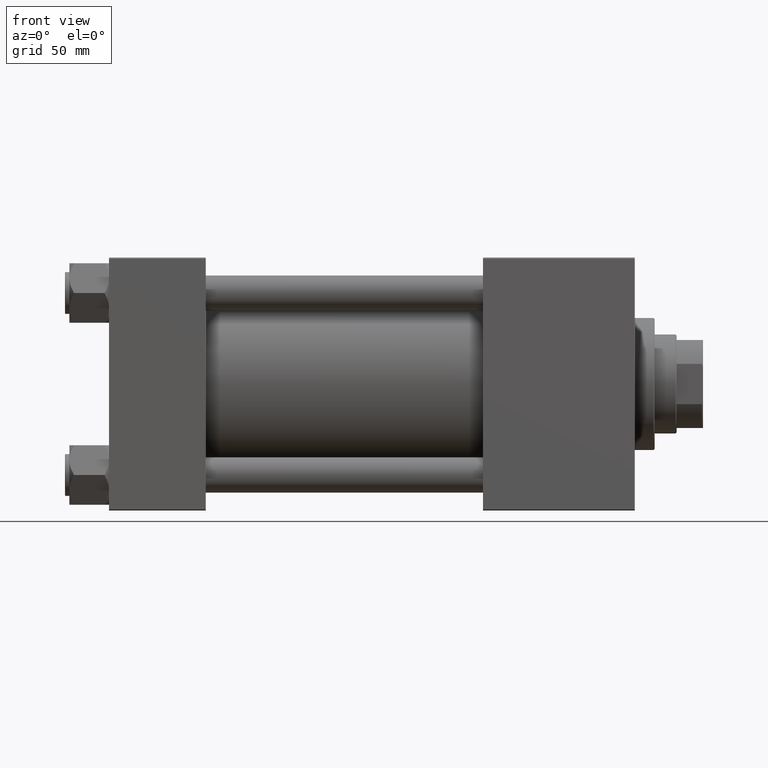
[diagram: clean part render]
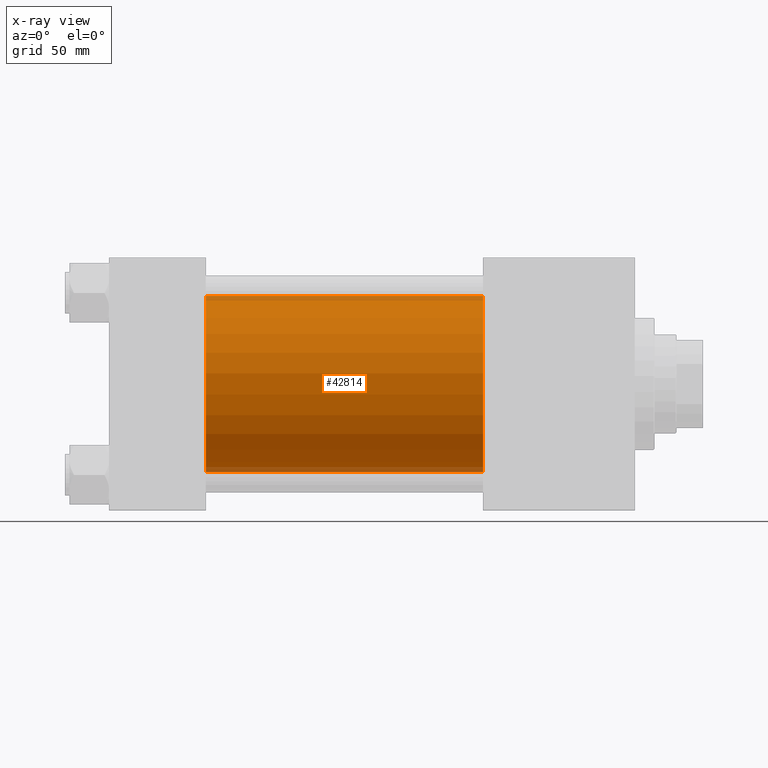
[diagram: x-ray — body ghosted, one internal face saturated and labeled with its STEP entity id]
A machine part, front view, then the same camera in x-ray: the body is ghosted and one INTERNAL B-rep face — a face not visible from any outside direction — is saturated and labeled: STEP entity #42814.
In plain terms, the highlighted cylindrical surface (partial cylindrical patch) has radius 40 mm, axis along (-1, -0, -0).
Its self-contained STEP definition (entity closure, byte-faithful):
#244 = DIRECTION ( 'NONE',  ( 0.000000000000000000, 0.000000000000000000, -1.000000000000000000 ) ) ;
#5362 = CIRCLE ( 'NONE', #17626, 40.00000000000000000 ) ;
#7646 = CARTESIAN_POINT ( 'NONE',  ( 169.9999999999999716, -2.602085213965210642E-15, 0.000000000000000000 ) ) ;
#7909 = CYLINDRICAL_SURFACE ( 'NONE', #46941, 40.00000000000000000 ) ;
#8044 = VERTEX_POINT ( 'NONE', #46992 ) ;
#9305 = VECTOR ( 'NONE', #21709, 1000.000000000000000 ) ;
#9625 = VERTEX_POINT ( 'NONE', #42390 ) ;
#10193 = VERTEX_POINT ( 'NONE', #15359 ) ;
#12612 = LINE ( 'NONE', #31824, #40355 ) ;
#13397 = EDGE_LOOP ( 'NONE', ( #23552, #50301, #29156, #16760 ) ) ;
#14602 = CARTESIAN_POINT ( 'NONE',  ( 44.00000000000000000, -2.602085213965210642E-15, 0.000000000000000000 ) ) ;
#15266 = CARTESIAN_POINT ( 'NONE',  ( 169.9999999999999716, -2.602085213965210642E-15, 40.00000000000000000 ) ) ;
#15359 = CARTESIAN_POINT ( 'NONE',  ( 44.00000000000000000, -2.602085213965210642E-15, 40.00000000000000000 ) ) ;
#16760 = ORIENTED_EDGE ( 'NONE', *, *, #41615, .F. ) ;
#17610 = CARTESIAN_POINT ( 'NONE',  ( 169.9999999999999716, 2.296501982624201990E-15, -40.00000000000000000 ) ) ;
#17626 = AXIS2_PLACEMENT_3D ( 'NONE', #14602, #37406, #30225 ) ;
#19437 = DIRECTION ( 'NONE',  ( 0.000000000000000000, 0.000000000000000000, 1.000000000000000000 ) ) ;
#21709 = DIRECTION ( 'NONE',  ( -1.000000000000000000, -0.000000000000000000, -0.000000000000000000 ) ) ;
#22247 = CIRCLE ( 'NONE', #47638, 40.00000000000000000 ) ;
#23552 = ORIENTED_EDGE ( 'NONE', *, *, #39528, .T. ) ;
#23781 = FACE_OUTER_BOUND ( 'NONE', #13397, .T. ) ;
#26872 = DIRECTION ( 'NONE',  ( -1.000000000000000000, -0.000000000000000000, -0.000000000000000000 ) ) ;
#27624 = EDGE_CURVE ( 'NONE', #10193, #8044, #5362, .T. ) ;
#29156 = ORIENTED_EDGE ( 'NONE', *, *, #27624, .F. ) ;
#29903 = LINE ( 'NONE', #17610, #9305 ) ;
#30225 = DIRECTION ( 'NONE',  ( 0.000000000000000000, 0.000000000000000000, -1.000000000000000000 ) ) ;
#30969 = DIRECTION ( 'NONE',  ( 1.000000000000000000, 0.000000000000000000, 0.000000000000000000 ) ) ;
#31469 = CARTESIAN_POINT ( 'NONE',  ( 169.9999999999999716, -2.602085213965210642E-15, 0.000000000000000000 ) ) ;
#31792 = VERTEX_POINT ( 'NONE', #15266 ) ;
#31824 = CARTESIAN_POINT ( 'NONE',  ( 169.9999999999999716, -2.602085213965210642E-15, 40.00000000000000000 ) ) ;
#37406 = DIRECTION ( 'NONE',  ( 1.000000000000000000, 0.000000000000000000, 0.000000000000000000 ) ) ;
#39528 = EDGE_CURVE ( 'NONE', #31792, #9625, #22247, .T. ) ;
#40355 = VECTOR ( 'NONE', #48219, 1000.000000000000000 ) ;
#41615 = EDGE_CURVE ( 'NONE', #31792, #10193, #12612, .T. ) ;
#42390 = CARTESIAN_POINT ( 'NONE',  ( 169.9999999999999716, 2.296501982624201990E-15, -40.00000000000000000 ) ) ;
#42814 = ADVANCED_FACE ( 'NONE', ( #23781 ), #7909, .F. ) ;
#44043 = EDGE_CURVE ( 'NONE', #9625, #8044, #29903, .T. ) ;
#46941 = AXIS2_PLACEMENT_3D ( 'NONE', #7646, #26872, #19437 ) ;
#46992 = CARTESIAN_POINT ( 'NONE',  ( 44.00000000000000000, 2.296501982624201990E-15, -40.00000000000000000 ) ) ;
#47638 = AXIS2_PLACEMENT_3D ( 'NONE', #31469, #30969, #244 ) ;
#48219 = DIRECTION ( 'NONE',  ( -1.000000000000000000, -0.000000000000000000, -0.000000000000000000 ) ) ;
#50301 = ORIENTED_EDGE ( 'NONE', *, *, #44043, .T. ) ;